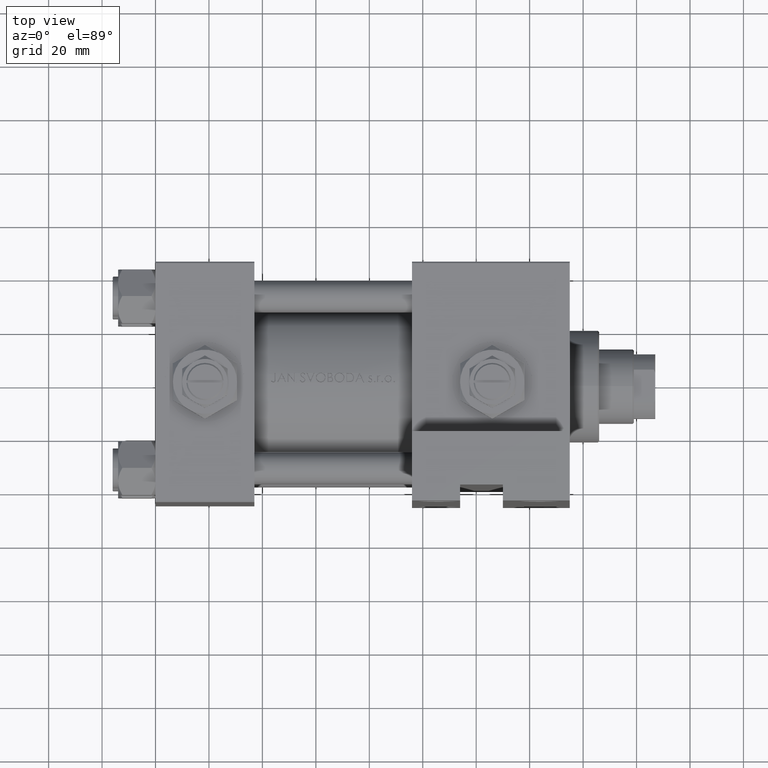
[diagram: clean part render]
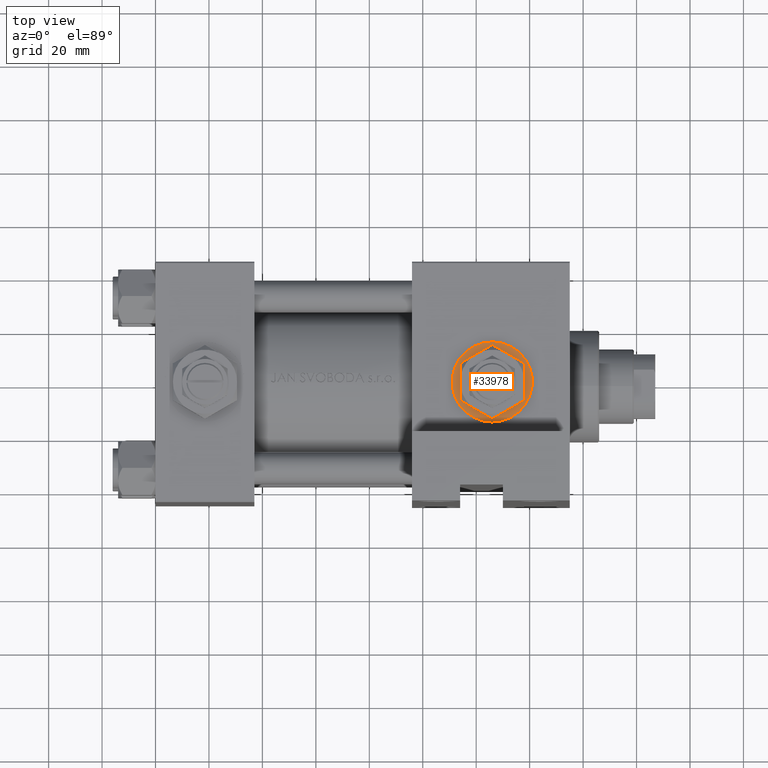
[diagram: same view with one face highlighted and labeled with its STEP entity id]
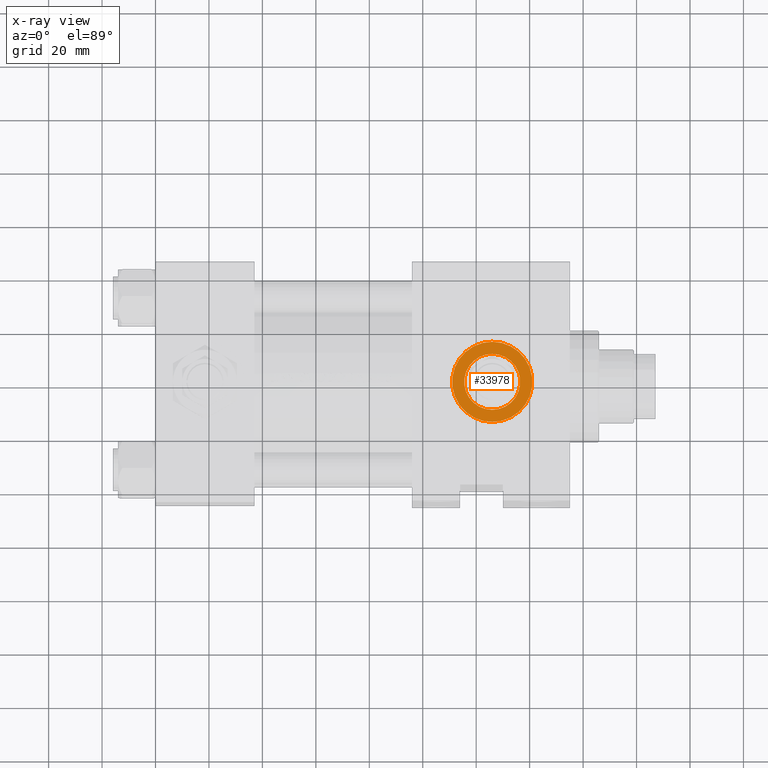
[diagram: x-ray of the same camera — body ghosted, the highlighted face saturated]
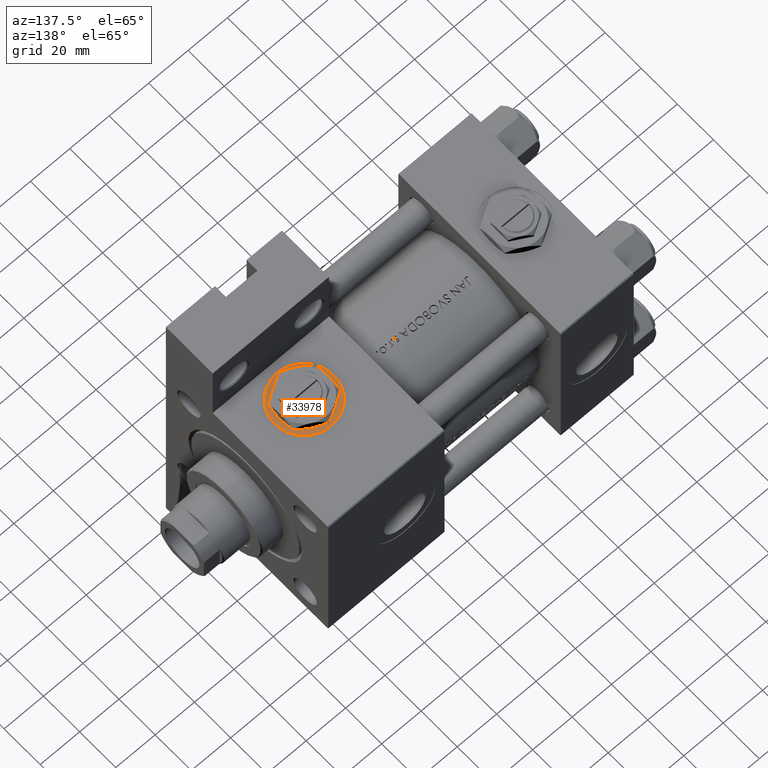
[diagram: same view with one face highlighted and labeled with its STEP entity id]
A machine part, top view. The second image highlights one B-rep face of the part: STEP entity #33978.
The next image is the same camera in x-ray: the body ghosted, the highlighted face saturated — about 0% of this face is hidden behind the body in this view.
A second angle (auxiliary view) of the same face is appended — the face is thin or edge-on in the first view.
In plain terms, the highlighted planar face has unit normal (0, -0, 1).
Its self-contained STEP definition (entity closure, byte-faithful):
#1220 = CARTESIAN_POINT ( 'NONE',  ( 126.0000000000000000, -44.79999999999999716, -10.47999999999998977 ) ) ;
#8081 = DIRECTION ( 'NONE',  ( 0.000000000000000000, 0.000000000000000000, -1.000000000000000000 ) ) ;
#8977 = DIRECTION ( 'NONE',  ( 0.000000000000000000, -1.000000000000000000, -8.673617379884036705E-17 ) ) ;
#10523 = CIRCLE ( 'NONE', #26582, 10.47999999999998622 ) ;
#11466 = FACE_BOUND ( 'NONE', #20567, .T. ) ;
#11889 = AXIS2_PLACEMENT_3D ( 'NONE', #33825, #18755, #49200 ) ;
#12098 = DIRECTION ( 'NONE',  ( 0.000000000000000000, -1.000000000000000000, -8.673617379884036705E-17 ) ) ;
#13619 = EDGE_LOOP ( 'NONE', ( #29394, #19057 ) ) ;
#17432 = EDGE_CURVE ( 'NONE', #21046, #25815, #33757, .T. ) ;
#17775 = AXIS2_PLACEMENT_3D ( 'NONE', #41505, #49082, #37711 ) ;
#18391 = ORIENTED_EDGE ( 'NONE', *, *, #40886, .F. ) ;
#18755 = DIRECTION ( 'NONE',  ( 0.000000000000000000, -1.000000000000000000, -8.673617379884036705E-17 ) ) ;
#18864 = VERTEX_POINT ( 'NONE', #21593 ) ;
#19057 = ORIENTED_EDGE ( 'NONE', *, *, #44010, .T. ) ;
#20567 = EDGE_LOOP ( 'NONE', ( #33152, #18391 ) ) ;
#21046 = VERTEX_POINT ( 'NONE', #1220 ) ;
#21593 = CARTESIAN_POINT ( 'NONE',  ( 126.0000000000000000, -44.79999999999999716, -15.00000000000002842 ) ) ;
#22537 = AXIS2_PLACEMENT_3D ( 'NONE', #31743, #27976, #36029 ) ;
#24068 = DIRECTION ( 'NONE',  ( 0.000000000000000000, 0.000000000000000000, -1.000000000000000000 ) ) ;
#25815 = VERTEX_POINT ( 'NONE', #45930 ) ;
#26582 = AXIS2_PLACEMENT_3D ( 'NONE', #31432, #12098, #8081 ) ;
#27976 = DIRECTION ( 'NONE',  ( 0.000000000000000000, -1.000000000000000000, -8.673617379884036705E-17 ) ) ;
#29099 = AXIS2_PLACEMENT_3D ( 'NONE', #39632, #8977, #24068 ) ;
#29394 = ORIENTED_EDGE ( 'NONE', *, *, #44857, .T. ) ;
#30590 = CIRCLE ( 'NONE', #29099, 15.00000000000002487 ) ;
#31432 = CARTESIAN_POINT ( 'NONE',  ( 126.0000000000000000, -44.79999999999999716, -3.452099717193846907E-15 ) ) ;
#31743 = CARTESIAN_POINT ( 'NONE',  ( 126.0000000000000000, -44.79999999999999716, -3.452099717193846907E-15 ) ) ;
#31932 = VERTEX_POINT ( 'NONE', #46632 ) ;
#33152 = ORIENTED_EDGE ( 'NONE', *, *, #17432, .F. ) ;
#33757 = CIRCLE ( 'NONE', #22537, 10.47999999999998622 ) ;
#33825 = CARTESIAN_POINT ( 'NONE',  ( 126.0000000000000000, -44.79999999999999716, -3.452099717193846907E-15 ) ) ;
#33978 = ADVANCED_FACE ( 'NONE', ( #11466, #42620 ), #38836, .T. ) ;
#36029 = DIRECTION ( 'NONE',  ( 0.000000000000000000, 0.000000000000000000, -1.000000000000000000 ) ) ;
#37711 = DIRECTION ( 'NONE',  ( 0.000000000000000000, 0.000000000000000000, -1.000000000000000000 ) ) ;
#38836 = PLANE ( 'NONE',  #11889 ) ;
#39415 = CIRCLE ( 'NONE', #17775, 15.00000000000002487 ) ;
#39632 = CARTESIAN_POINT ( 'NONE',  ( 126.0000000000000000, -44.79999999999999716, -3.452099717193846907E-15 ) ) ;
#40886 = EDGE_CURVE ( 'NONE', #25815, #21046, #10523, .T. ) ;
#41505 = CARTESIAN_POINT ( 'NONE',  ( 126.0000000000000000, -44.79999999999999716, -3.452099717193846907E-15 ) ) ;
#42620 = FACE_OUTER_BOUND ( 'NONE', #13619, .T. ) ;
#44010 = EDGE_CURVE ( 'NONE', #31932, #18864, #30590, .T. ) ;
#44857 = EDGE_CURVE ( 'NONE', #18864, #31932, #39415, .T. ) ;
#45930 = CARTESIAN_POINT ( 'NONE',  ( 126.0000000000000000, -44.79999999999999716, 10.47999999999998266 ) ) ;
#46632 = CARTESIAN_POINT ( 'NONE',  ( 126.0000000000000000, -44.79999999999999716, 15.00000000000002132 ) ) ;
#49082 = DIRECTION ( 'NONE',  ( 0.000000000000000000, -1.000000000000000000, -8.673617379884036705E-17 ) ) ;
#49200 = DIRECTION ( 'NONE',  ( 0.000000000000000000, 8.673617379884036705E-17, -1.000000000000000000 ) ) ;